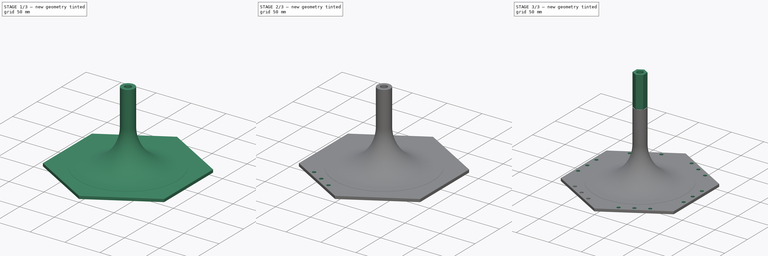
[diagram: build sequence overview — one tinted view per stage of 3, left to right]
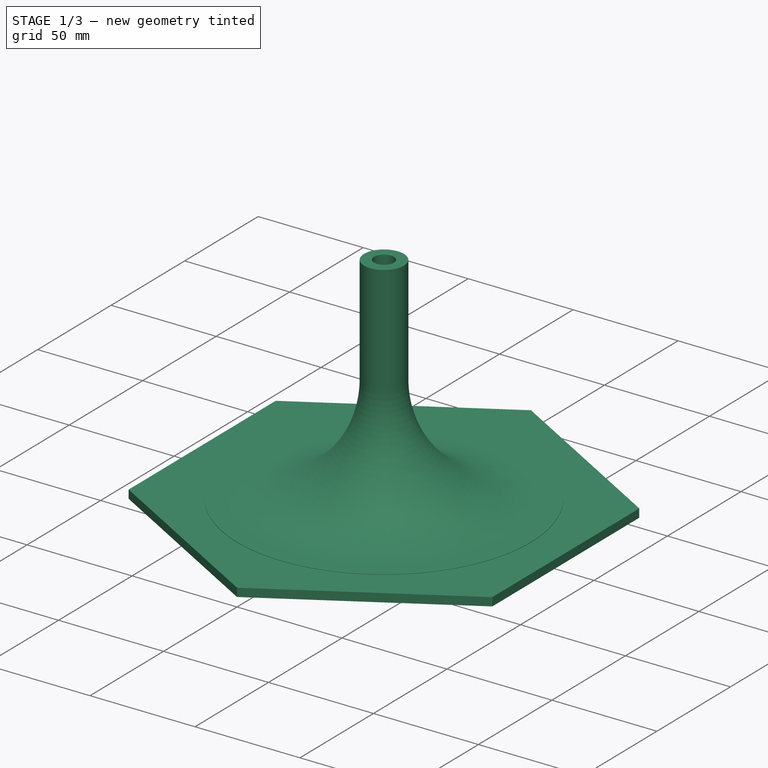
[diagram: stage 1 of 3 — iso view after this stage's code; geometry added in this stage tinted green]
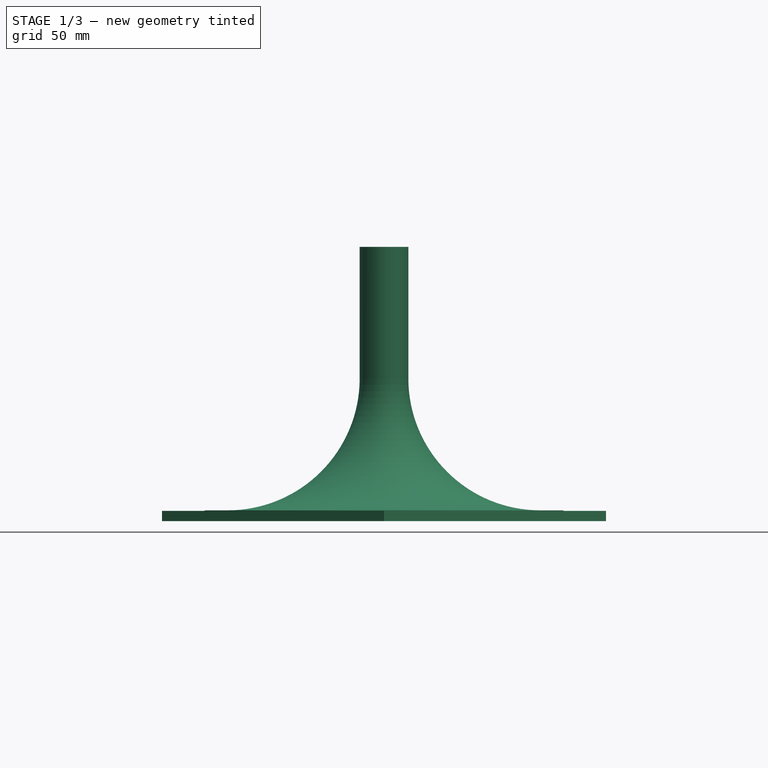
[diagram: stage 1 of 3 — front view after this stage's code; geometry added in this stage tinted green]
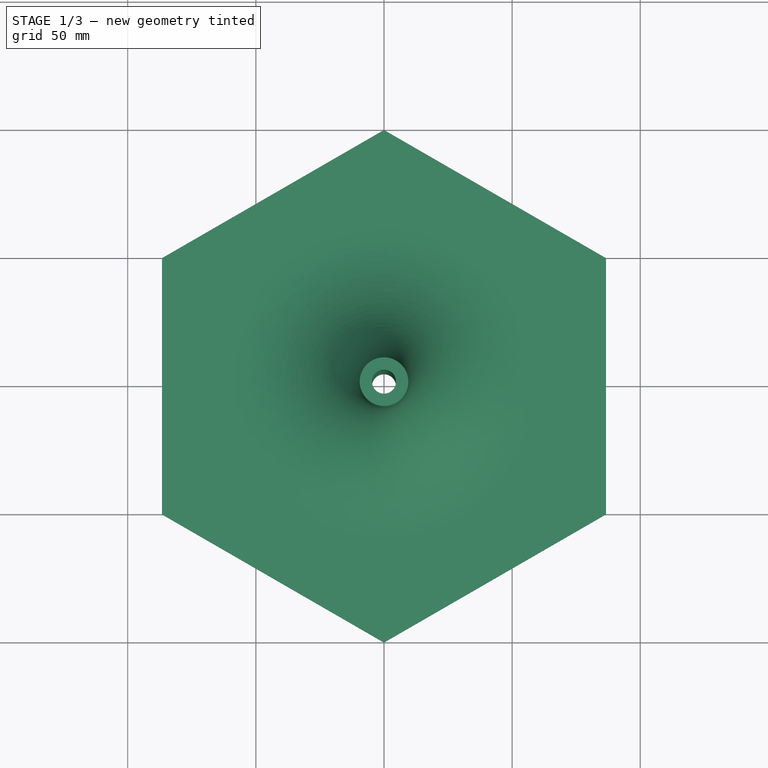
[diagram: stage 1 of 3 — top view after this stage's code; geometry added in this stage tinted green]
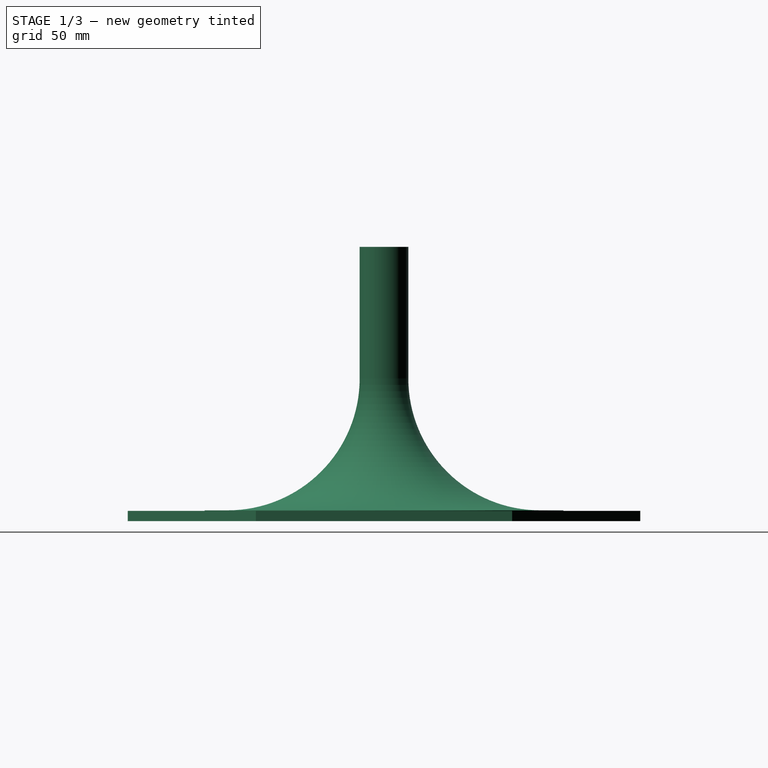
[diagram: stage 1 of 3 — right view after this stage's code; geometry added in this stage tinted green]
FCSTD DOCUMENT  (FreeCAD 0.18R16110 (Git))
Label: hubshaft_v3
License: All rights reserved
LicenseURL: http://en.wikipedia.org/wiki/All_rights_reserved
objects: Sketcher::SketchObject×4, PartDesign::Pad×2, PartDesign::Revolution×1, PartDesign::Pocket×1, PartDesign::PolarPattern×1, PartDesign::Body×1
note: 14 computed .brp shape members not serialized (recipe doc carries the construction recipe); baked Part::Feature solids carry a one-line shape summary decoded from their .brp

FEATURE [Sketcher::SketchObject] Sketch
  Placement = pos=(0,0,0) rot=(1,0,0;1.5708rad)
  sketch-geometry (7):
    g0: LineSegment StartX=9.49 StartY=51.71 StartZ=0 EndX=9.49 EndY=103 EndZ=0
    g1: LineSegment StartX=9.49 StartY=103 StartZ=0 EndX=4.7 EndY=103 EndZ=0
    g2: LineSegment StartX=4.7 StartY=0 StartZ=0 EndX=70 EndY=0 EndZ=0
    g3: LineSegment StartX=70 StartY=0 StartZ=0 EndX=70 EndY=0.2 EndZ=0
    g4: LineSegment StartX=70 StartY=0.2 StartZ=0 EndX=61 EndY=0.2 EndZ=0
    g5: ArcOfCircle CenterX=61 CenterY=51.71 CenterZ=0 NormalX=0 NormalY=0 NormalZ=1 AngleXU=0 Radius=51.51 StartAngle=3.14159 EndAngle=4.71239
    g6: LineSegment StartX=4.7 StartY=103 StartZ=0 EndX=4.7 EndY=0 EndZ=0
  constraints (22):
    c: Vertical(g0)
    c: Horizontal(g1)
    c: Horizontal(g2)
    c: Coincident(g2,g3)
    c: Vertical(g3)
    c: Coincident(g3,g4)
    c: Horizontal(g4)
    c: DistanceY(g3,g3) = 0.2
    c: Coincident(g5,g0)
    c: Coincident(g5,g4)
    c: Tangent(g0,g5) = 1.5708
    c: Tangent(g4,g5) = 1.5708
    c: DistanceX(g4,g4) = 9
    c: DistanceX(g2) = 4.7
    c: DistanceX(g1) = 4.7
    c: Coincident(g6,g1)
    c: Coincident(g6,g2)
    c: DistanceX(g2) = 70
    c: DistanceY(g2) = 0
    c: DistanceY(g6,g6) = 103
    c: Coincident(g1,g0)
    c: DistanceX(g0) = 9.49
FEATURE [PartDesign::Revolution] Revolution
  Angle = 360
  Axis = (0,2e-16,1)
  Base = (0,0,0)
  Placement = pos=(0,0,0) rot=(1,0,0;1.5708rad)
  Profile = -> Sketch
  ReferenceAxis = -> Sketch [V_Axis]
  Reversed = true
FEATURE [Sketcher::SketchObject] Sketch001
  MapMode = 5
  Placement = pos=(0,0,0) rot=(1,0,0;3.14159rad)
  Support = -> [Revolution]
  sketch-geometry (8):
    g0: LineSegment StartX=0 StartY=100 StartZ=0 EndX=-86.6025 EndY=50 EndZ=0
    g1: LineSegment StartX=-86.6025 StartY=50 StartZ=0 EndX=-86.6025 EndY=-50 EndZ=0
    g2: LineSegment StartX=-86.6025 StartY=-50 StartZ=0 EndX=-1.42e-14 EndY=-100 EndZ=0
    g3: LineSegment StartX=-1.42e-14 StartY=-100 StartZ=0 EndX=86.6025 EndY=-50 EndZ=0
    g4: LineSegment StartX=86.6025 StartY=-50 StartZ=0 EndX=86.6025 EndY=50 EndZ=0
    g5: LineSegment StartX=86.6025 StartY=50 StartZ=0 EndX=0 EndY=100 EndZ=0
    g6: Circle [constr] CenterX=0 CenterY=0 CenterZ=0 NormalX=0 NormalY=0 NormalZ=1 AngleXU=0 Radius=100
    g7: Circle CenterX=0 CenterY=0 CenterZ=0 NormalX=0 NormalY=0 NormalZ=1 AngleXU=0 Radius=4.7
  constraints (18):
    c: Coincident(g0,g1)
    c: Coincident(g1,g2)
    c: Coincident(g2,g3)
    c: Coincident(g3,g4)
    c: Coincident(g4,g5)
    c: Coincident(g5,g0)
    c: Equal(g0, g1-g5) x5
    c: PointOnObject(g0,g6)
    c: PointOnObject(g1,g6)
    c: PointOnObject(g2,g6)
    c: PointOnObject(g3,g6)
    c: PointOnObject(g4,g6)
    c: PointOnObject(g5,g6)
    c: Coincident(g6,g-1)
    c: PointOnObject(g5,g-2)
    c: Radius(g6) = 100
    c: Coincident(g7,g-1)
    c: Radius(g7) = 4.7
FEATURE [PartDesign::Pad] Pad
  BaseFeature = -> Revolution
  Length = 4
  Length2 = 100
  Placement = pos=(0,0,0) rot=(1,0,0;1.5708rad)
  Profile = -> Sketch001
  Type = 0
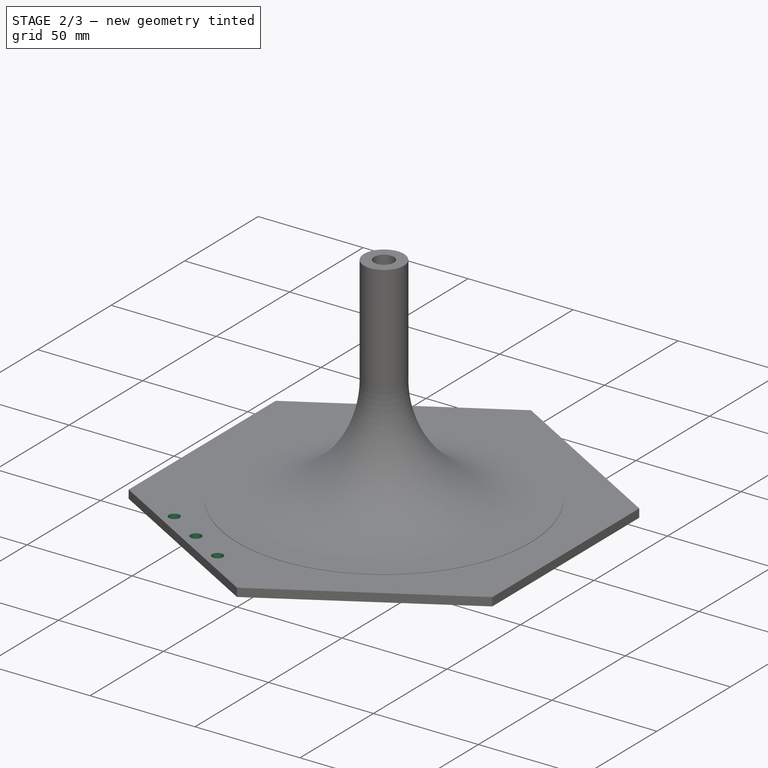
[diagram: stage 2 of 3 — iso view after this stage's code; geometry added in this stage tinted green]
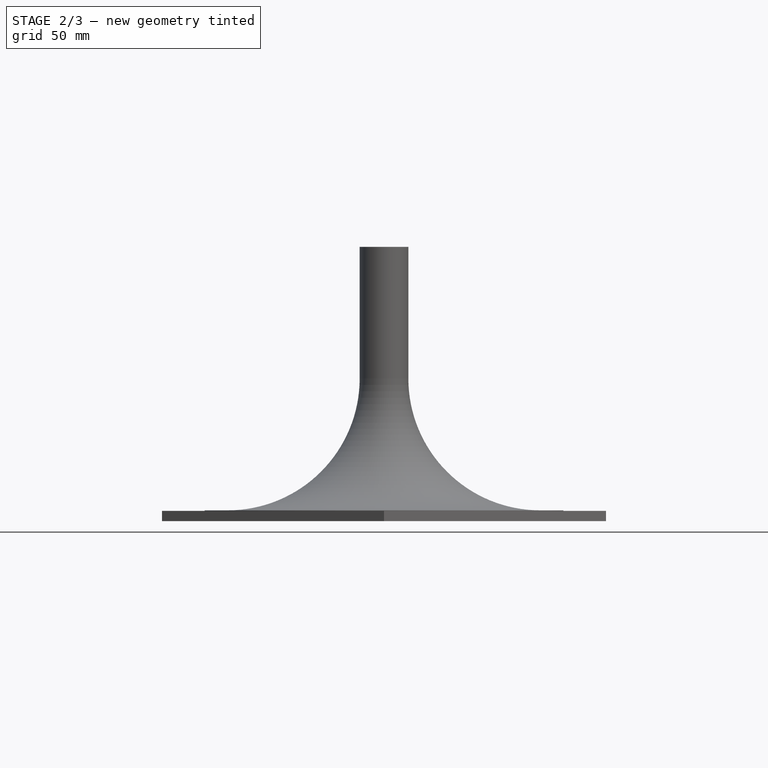
[diagram: stage 2 of 3 — front view after this stage's code; geometry added in this stage tinted green]
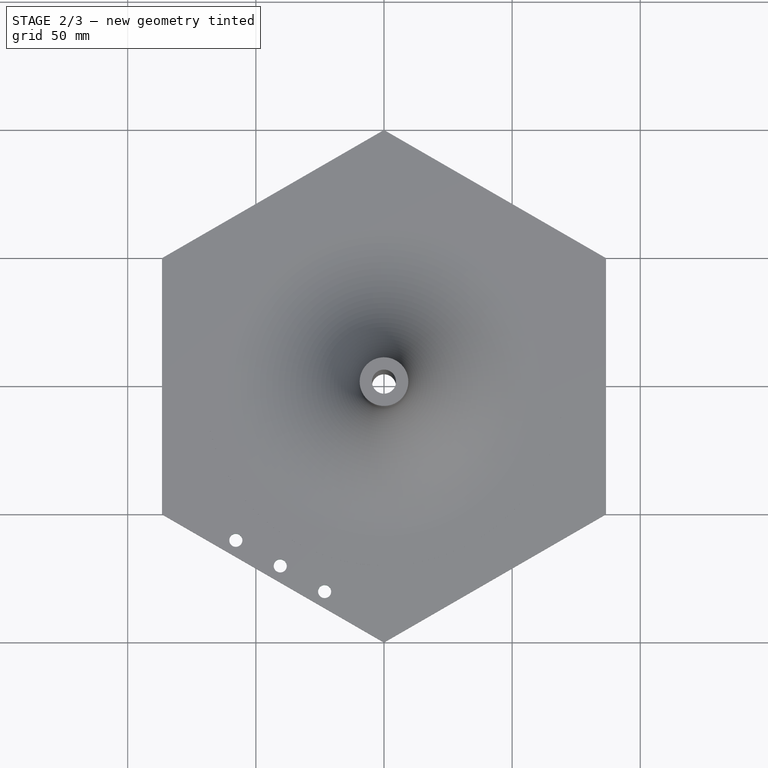
[diagram: stage 2 of 3 — top view after this stage's code; geometry added in this stage tinted green]
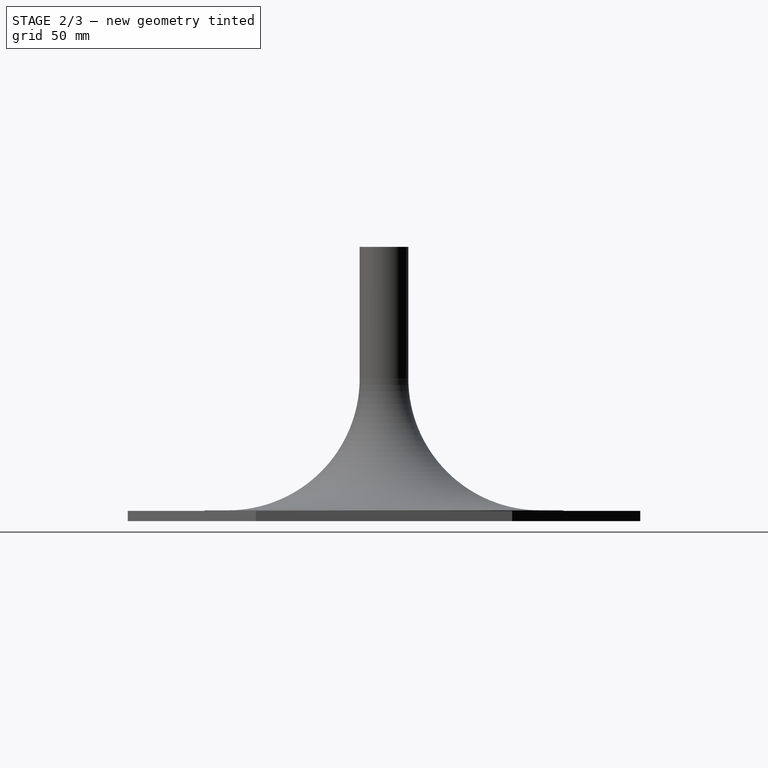
[diagram: stage 2 of 3 — right view after this stage's code; geometry added in this stage tinted green]
FEATURE [Sketcher::SketchObject] Sketch002
  MapMode = 5
  Placement = pos=(0,4.57e-14,103) rot=(0,0,1;3.14159rad)
  Support = -> [Pad]
  sketch-geometry (8):
    g0: LineSegment StartX=0 StartY=9.49 StartZ=0 EndX=-8.21858 EndY=4.745 EndZ=0
    g1: LineSegment StartX=-8.21858 StartY=4.745 StartZ=0 EndX=-8.21858 EndY=-4.745 EndZ=0
    g2: LineSegment StartX=-8.21858 StartY=-4.745 StartZ=0 EndX=-1.8e-15 EndY=-9.49 EndZ=0
    g3: LineSegment StartX=-1.8e-15 StartY=-9.49 StartZ=0 EndX=8.21858 EndY=-4.745 EndZ=0
    g4: LineSegment StartX=8.21858 StartY=-4.745 StartZ=0 EndX=8.21858 EndY=4.745 EndZ=0
    g5: LineSegment StartX=8.21858 StartY=4.745 StartZ=0 EndX=0 EndY=9.49 EndZ=0
    g6: Circle [constr] CenterX=0 CenterY=0 CenterZ=0 NormalX=0 NormalY=0 NormalZ=1 AngleXU=0 Radius=9.49
    g7: Circle CenterX=0 CenterY=0 CenterZ=0 NormalX=0 NormalY=0 NormalZ=1 AngleXU=0 Radius=4.7
  constraints (18):
    c: Coincident(g0,g1)
    c: Coincident(g1,g2)
    c: Coincident(g2,g3)
    c: Coincident(g3,g4)
    c: Coincident(g4,g5)
    c: Coincident(g5,g0)
    c: Equal(g0, g1-g5) x5
    c: PointOnObject(g0,g6)
    c: PointOnObject(g1,g6)
    c: PointOnObject(g2,g6)
    c: PointOnObject(g3,g6)
    c: PointOnObject(g4,g6)
    c: PointOnObject(g5,g6)
    c: Coincident(g6,g-1)
    c: PointOnObject(g5,g-2)
    c: Radius(g6) = 9.49
    c: Coincident(g7,g-1)
    c: Radius(g7) = 4.7
FEATURE [Sketcher::SketchObject] Sketch003
  MapMode = 5
  Placement = pos=(0,-2e-15,-4) rot=(1,0,0;3.14159rad)
  sketch-geometry (13):
    g0: LineSegment [constr] StartX=0 StartY=93.5 StartZ=0 EndX=-80.9734 EndY=46.75 EndZ=0
    g1: LineSegment [constr] StartX=-80.9734 StartY=46.75 StartZ=0 EndX=-80.9734 EndY=-46.75 EndZ=0
    g2: LineSegment [constr] StartX=-80.9734 StartY=-46.75 StartZ=0 EndX=1.42e-14 EndY=-93.5 EndZ=0
    g3: LineSegment [constr] StartX=1.42e-14 StartY=-93.5 StartZ=0 EndX=80.9734 EndY=-46.75 EndZ=0
    g4: LineSegment [constr] StartX=80.9734 StartY=-46.75 StartZ=0 EndX=80.9734 EndY=46.75 EndZ=0
    g5: LineSegment [constr] StartX=80.9734 StartY=46.75 StartZ=0 EndX=0 EndY=93.5 EndZ=0
    g6: Circle [constr] CenterX=0 CenterY=0 CenterZ=0 NormalX=0 NormalY=0 NormalZ=1 AngleXU=0 Radius=93.5
    g7: LineSegment [constr] StartX=-80.9734 StartY=46.75 StartZ=0 EndX=-40.4867 EndY=70.125 EndZ=0
    g8: LineSegment [constr] StartX=-40.4867 StartY=70.125 StartZ=0 EndX=-57.8072 EndY=60.125 EndZ=0
    g9: LineSegment [constr] StartX=-40.4867 StartY=70.125 StartZ=0 EndX=-23.1662 EndY=80.125 EndZ=0
    g10: Circle CenterX=-57.8072 CenterY=60.125 CenterZ=0 NormalX=0 NormalY=0 NormalZ=1 AngleXU=0 Radius=2.55
    g11: Circle CenterX=-40.4867 CenterY=70.125 CenterZ=0 NormalX=0 NormalY=0 NormalZ=1 AngleXU=0 Radius=2.55
    g12: Circle CenterX=-23.1662 CenterY=80.125 CenterZ=0 NormalX=0 NormalY=0 NormalZ=1 AngleXU=0 Radius=2.55
  constraints (31):
    c: Coincident(g0,g1)
    c: Coincident(g1,g2)
    c: Coincident(g2,g3)
    c: Coincident(g3,g4)
    c: Coincident(g4,g5)
    c: Coincident(g5,g0)
    c: Equal(g0, g1-g5) x5
    c: PointOnObject(g0,g6)
    c: PointOnObject(g1,g6)
    c: PointOnObject(g2,g6)
    c: PointOnObject(g3,g6)
    c: PointOnObject(g4,g6)
    c: PointOnObject(g5,g6)
    c: Coincident(g6,g-1)
    c: PointOnObject(g5,g-2)
    c: Radius(g6) = 93.5
    c: Coincident(g7,g0)
    c: PointOnObject(g7,g0)
    c: Distance(g7) = 46.75
    c: Coincident(g8,g7)
    c: PointOnObject(g8,g0)
    c: Distance(g8) = 20
    c: Coincident(g9,g7)
    c: PointOnObject(g9,g0)
    c: Distance(g9) = 20
    c: Coincident(g10,g8)
    c: Coincident(g11,g7)
    c: Coincident(g12,g9)
    c: Radius(g10) = 2.55
    c: Equal(g10,g11)
    c: Equal(g11,g12)
FEATURE [PartDesign::Pocket] Pocket
  BaseFeature = -> Pad
  Length = 5
  Length2 = 100
  Placement = pos=(0,0,0) rot=(1,0,0;1.5708rad)
  Profile = -> Sketch003
  Type = 0
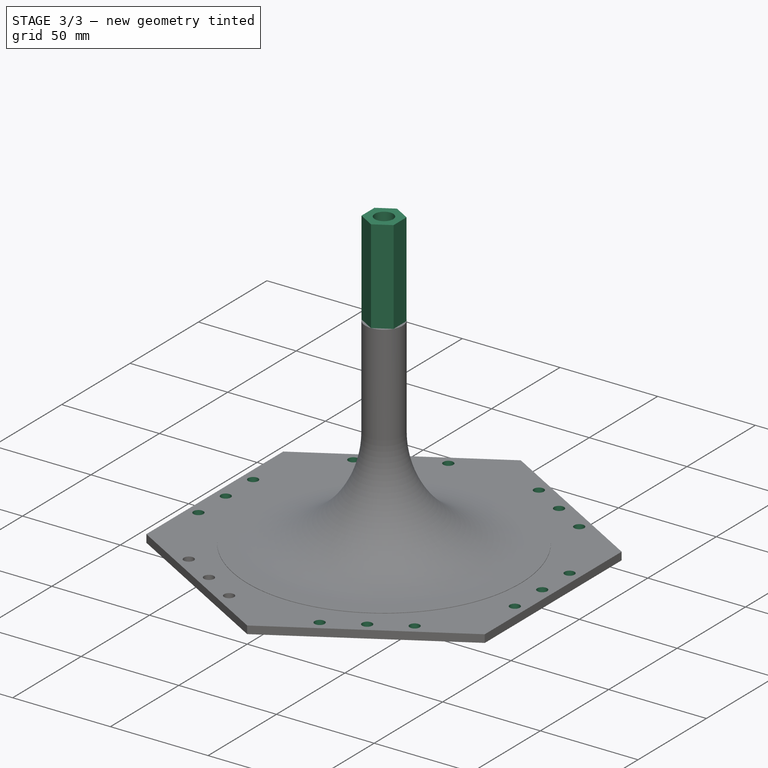
[diagram: stage 3 of 3 — iso view after this stage's code; geometry added in this stage tinted green]
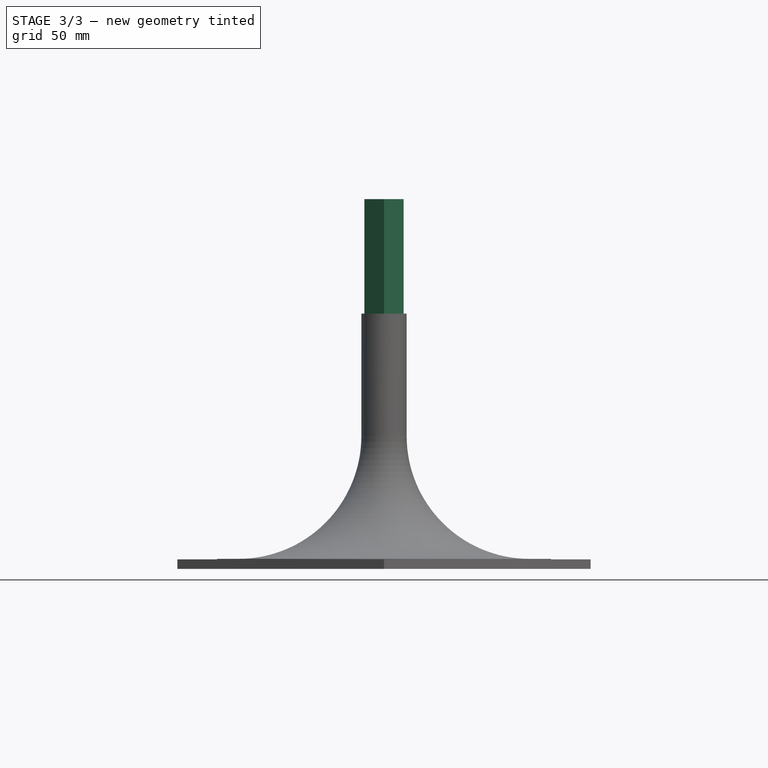
[diagram: stage 3 of 3 — front view after this stage's code; geometry added in this stage tinted green]
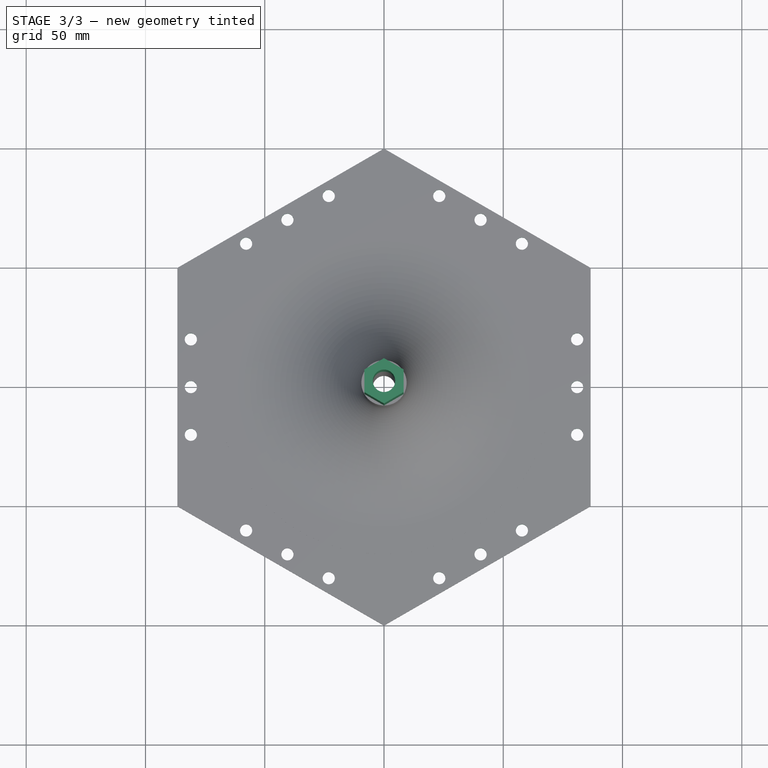
[diagram: stage 3 of 3 — top view after this stage's code; geometry added in this stage tinted green]
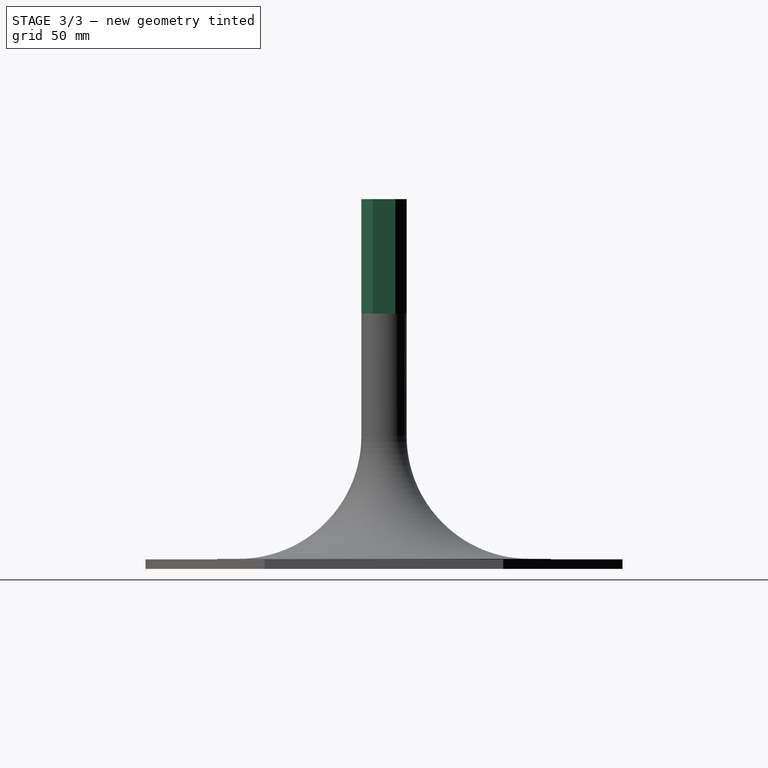
[diagram: stage 3 of 3 — right view after this stage's code; geometry added in this stage tinted green]
FEATURE [PartDesign::PolarPattern] PolarPattern
  Angle = 360
  Axis = -> Sketch003 [N_Axis]
  BaseFeature = -> Pocket
  Occurrences = 6
  Originals = -> [Pocket]
  Placement = pos=(0,0,0) rot=(1,0,0;1.5708rad)
FEATURE [PartDesign::Pad] Pad001
  BaseFeature = -> PolarPattern
  Length = 48
  Length2 = 100
  Placement = pos=(0,0,0) rot=(1,0,0;1.5708rad)
  Profile = -> Sketch002
  Type = 0
FEATURE [PartDesign::Body] Body
  Group = -> [Sketch,Revolution,Sketch001,Pad,Sketch002,Sketch003,Pocket,PolarPattern,Pad001]
  Origin = -> Origin
  Tip = -> Pad001
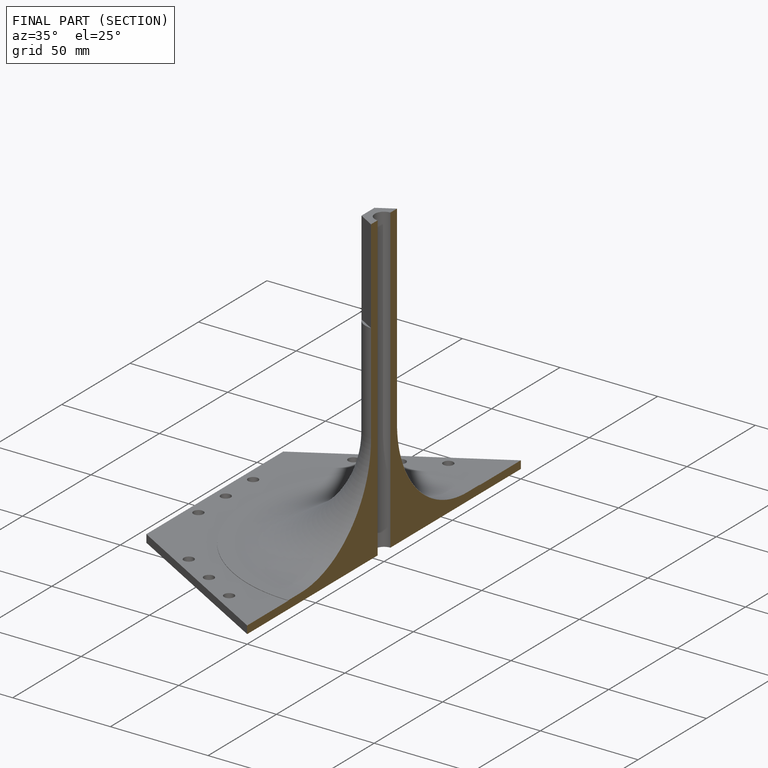
[diagram: finished part — half-section view (interior)]
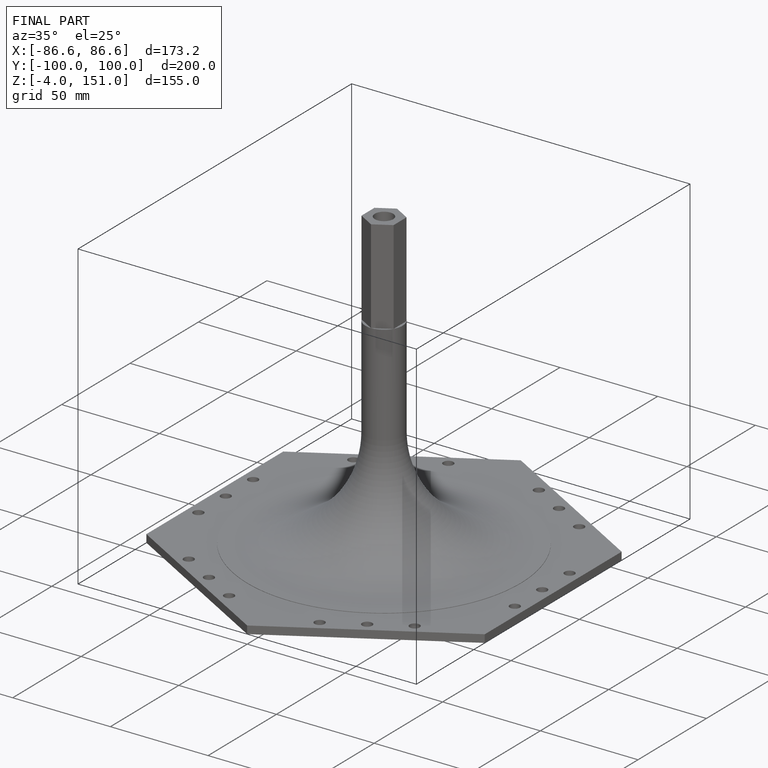
[diagram: finished part — iso view with bounding-box wireframe]
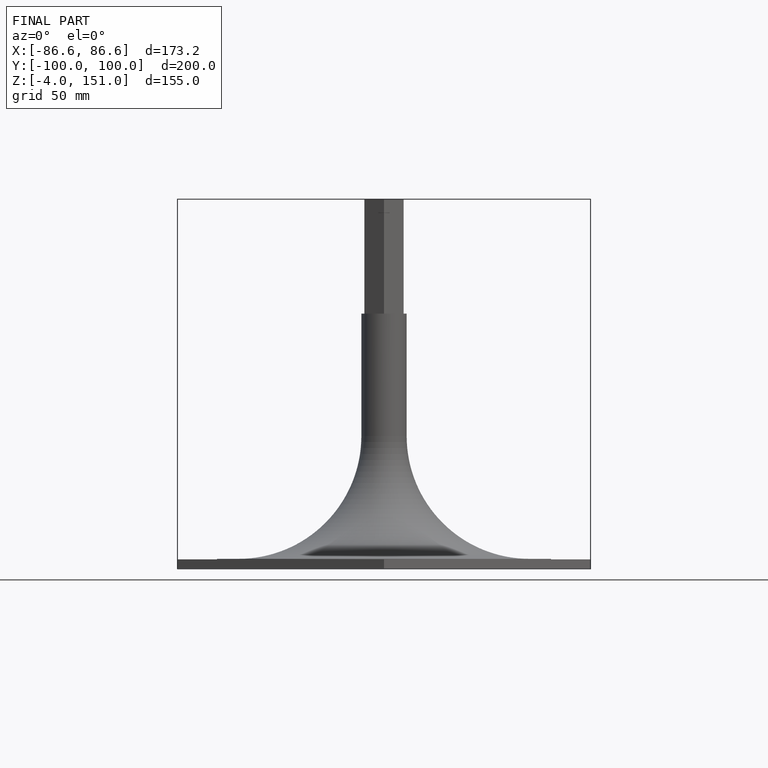
[diagram: finished part — front view with bounding-box wireframe]
